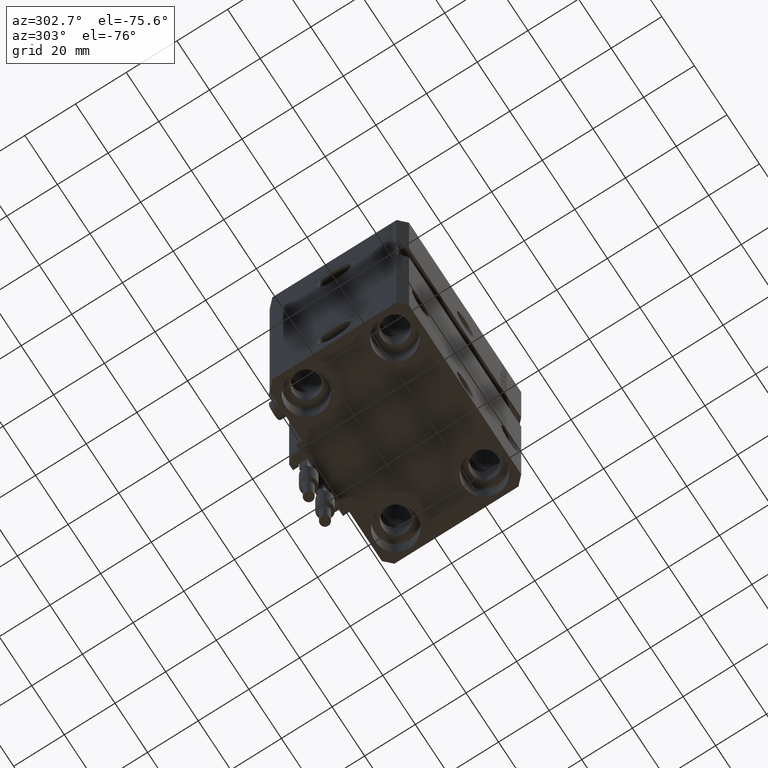
[diagram: clean part render]
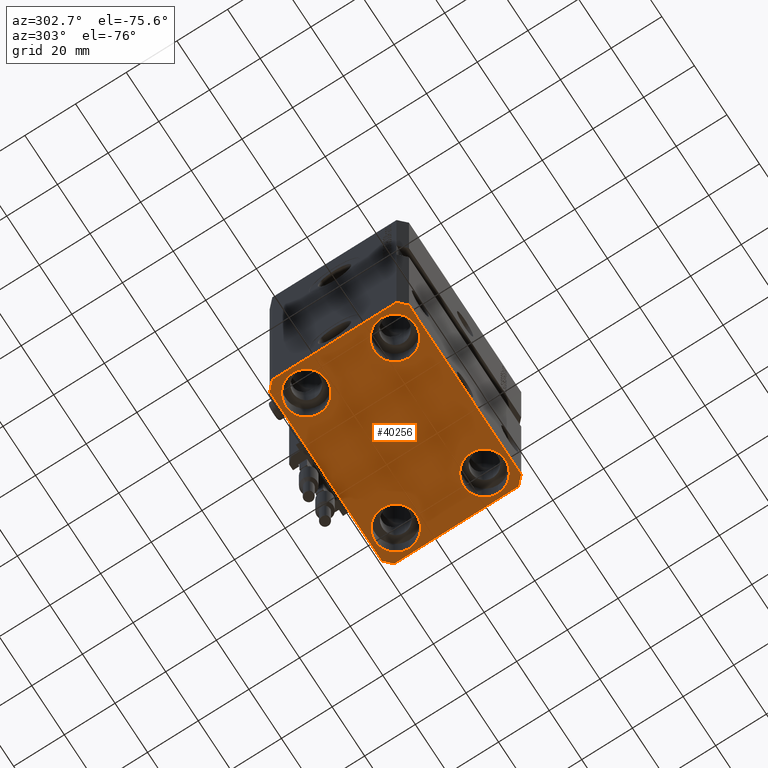
[diagram: same view with one face highlighted and labeled with its STEP entity id]
A machine part, auxiliary view. The second image highlights one B-rep face of the part: STEP entity #40256.
In plain terms, the highlighted planar face has unit normal (0, 0, 1).
Its self-contained STEP definition (entity closure, byte-faithful):
#202 = VERTEX_POINT ( 'NONE', #41326 ) ;
#227 = FACE_OUTER_BOUND ( 'NONE', #41562, .T. ) ;
#340 = VECTOR ( 'NONE', #24051, 1000.000000000000000 ) ;
#804 = DIRECTION ( 'NONE',  ( -0.7071067811865471286, -0.7071067811865479058, 0.000000000000000000 ) ) ;
#830 = ORIENTED_EDGE ( 'NONE', *, *, #5926, .T. ) ;
#1470 = VECTOR ( 'NONE', #49579, 1000.000000000000114 ) ;
#2094 = VECTOR ( 'NONE', #15143, 1000.000000000000114 ) ;
#2166 = LINE ( 'NONE', #37061, #1470 ) ;
#2675 = EDGE_CURVE ( 'NONE', #202, #41661, #6025, .T. ) ;
#2927 = DIRECTION ( 'NONE',  ( -0.000000000000000000, -0.000000000000000000, 1.000000000000000000 ) ) ;
#3236 = DIRECTION ( 'NONE',  ( 1.000000000000000000, 0.000000000000000000, 0.000000000000000000 ) ) ;
#3640 = DIRECTION ( 'NONE',  ( -0.000000000000000000, -0.000000000000000000, 1.000000000000000000 ) ) ;
#4038 = AXIS2_PLACEMENT_3D ( 'NONE', #50764, #46856, #15087 ) ;
#4148 = PLANE ( 'NONE',  #31691 ) ;
#4498 = VERTEX_POINT ( 'NONE', #33181 ) ;
#4646 = ORIENTED_EDGE ( 'NONE', *, *, #35674, .T. ) ;
#4846 = ORIENTED_EDGE ( 'NONE', *, *, #7236, .T. ) ;
#5220 = ORIENTED_EDGE ( 'NONE', *, *, #20494, .T. ) ;
#5291 = DIRECTION ( 'NONE',  ( -0.000000000000000000, -0.000000000000000000, 1.000000000000000000 ) ) ;
#5893 = CARTESIAN_POINT ( 'NONE',  ( 27.50000000000000355, -17.50000000000000000, -110.0000000000000000 ) ) ;
#5926 = EDGE_CURVE ( 'NONE', #30546, #6174, #49149, .T. ) ;
#5977 = AXIS2_PLACEMENT_3D ( 'NONE', #10790, #26402, #3236 ) ;
#6025 = LINE ( 'NONE', #33104, #22386 ) ;
#6174 = VERTEX_POINT ( 'NONE', #8880 ) ;
#7236 = EDGE_CURVE ( 'NONE', #27333, #13291, #28431, .T. ) ;
#7311 = ORIENTED_EDGE ( 'NONE', *, *, #17286, .T. ) ;
#7506 = ORIENTED_EDGE ( 'NONE', *, *, #18145, .F. ) ;
#7803 = DIRECTION ( 'NONE',  ( 1.000000000000000000, 0.000000000000000000, 0.000000000000000000 ) ) ;
#8038 = DIRECTION ( 'NONE',  ( 1.000000000000000000, 0.000000000000000000, 0.000000000000000000 ) ) ;
#8188 = CARTESIAN_POINT ( 'NONE',  ( -35.75000000000000711, -17.50000000000000000, -110.0000000000000000 ) ) ;
#8685 = LINE ( 'NONE', #21412, #34942 ) ;
#8880 = CARTESIAN_POINT ( 'NONE',  ( -35.75000000000000711, 17.50000000000000000, -110.0000000000000000 ) ) ;
#9677 = DIRECTION ( 'NONE',  ( 0.000000000000000000, -1.000000000000000000, 0.000000000000000000 ) ) ;
#10335 = ORIENTED_EDGE ( 'NONE', *, *, #31018, .F. ) ;
#10435 = AXIS2_PLACEMENT_3D ( 'NONE', #5893, #42058, #21768 ) ;
#10790 = CARTESIAN_POINT ( 'NONE',  ( 27.49999999999999645, 17.50000000000001066, -110.0000000000000000 ) ) ;
#10941 = ORIENTED_EDGE ( 'NONE', *, *, #11917, .T. ) ;
#11085 = VERTEX_POINT ( 'NONE', #17912 ) ;
#11180 = CARTESIAN_POINT ( 'NONE',  ( 0.000000000000000000, 0.000000000000000000, -110.0000000000000000 ) ) ;
#11437 = DIRECTION ( 'NONE',  ( 0.000000000000000000, 0.000000000000000000, 1.000000000000000000 ) ) ;
#11503 = DIRECTION ( 'NONE',  ( 1.000000000000000000, 0.000000000000000000, 0.000000000000000000 ) ) ;
#11917 = EDGE_CURVE ( 'NONE', #30815, #34428, #20165, .T. ) ;
#11942 = LINE ( 'NONE', #43709, #27100 ) ;
#12455 = EDGE_LOOP ( 'NONE', ( #7311, #13935 ) ) ;
#13291 = VERTEX_POINT ( 'NONE', #21071 ) ;
#13366 = DIRECTION ( 'NONE',  ( 1.000000000000000000, 0.000000000000000000, 0.000000000000000000 ) ) ;
#13625 = CARTESIAN_POINT ( 'NONE',  ( -27.50000000000000355, 17.50000000000000000, -110.0000000000000000 ) ) ;
#13935 = ORIENTED_EDGE ( 'NONE', *, *, #25793, .T. ) ;
#14106 = LINE ( 'NONE', #50298, #2094 ) ;
#15087 = DIRECTION ( 'NONE',  ( 1.000000000000000000, 0.000000000000000000, 0.000000000000000000 ) ) ;
#15123 = CARTESIAN_POINT ( 'NONE',  ( 35.74999999999999289, 17.50000000000001066, -110.0000000000000000 ) ) ;
#15143 = DIRECTION ( 'NONE',  ( -0.7071067811865356934, 0.7071067811865594521, 0.000000000000000000 ) ) ;
#15417 = EDGE_LOOP ( 'NONE', ( #47909, #830 ) ) ;
#15577 = CARTESIAN_POINT ( 'NONE',  ( 37.49999999999999289, -24.50000000000000000, -110.0000000000000000 ) ) ;
#16532 = CIRCLE ( 'NONE', #4038, 8.249999999999992895 ) ;
#17286 = EDGE_CURVE ( 'NONE', #35096, #23599, #24526, .T. ) ;
#17912 = CARTESIAN_POINT ( 'NONE',  ( 34.50000000000056843, 27.50000000000000000, -110.0000000000000000 ) ) ;
#17939 = ORIENTED_EDGE ( 'NONE', *, *, #39572, .F. ) ;
#18145 = EDGE_CURVE ( 'NONE', #35467, #11085, #14106, .T. ) ;
#18266 = CARTESIAN_POINT ( 'NONE',  ( 37.50000000000051870, 24.49999999999995381, -110.0000000000000000 ) ) ;
#18546 = CARTESIAN_POINT ( 'NONE',  ( -27.50000000000000355, -17.50000000000000000, -110.0000000000000000 ) ) ;
#18618 = EDGE_CURVE ( 'NONE', #4498, #19673, #11942, .T. ) ;
#18946 = DIRECTION ( 'NONE',  ( 1.076236605503979380E-14, 1.000000000000000000, 0.000000000000000000 ) ) ;
#19673 = VERTEX_POINT ( 'NONE', #21818 ) ;
#20165 = CIRCLE ( 'NONE', #29310, 8.250000000000000000 ) ;
#20494 = EDGE_CURVE ( 'NONE', #34428, #30815, #47994, .T. ) ;
#20838 = CARTESIAN_POINT ( 'NONE',  ( -37.49999999999999289, -24.50000000000000000, -110.0000000000000000 ) ) ;
#21071 = CARTESIAN_POINT ( 'NONE',  ( 19.25000000000000000, 17.50000000000001066, -110.0000000000000000 ) ) ;
#21412 = CARTESIAN_POINT ( 'NONE',  ( -37.49999999999999289, -24.50000000000000000, -110.0000000000000000 ) ) ;
#21768 = DIRECTION ( 'NONE',  ( 1.000000000000000000, 0.000000000000000000, 0.000000000000000000 ) ) ;
#21818 = CARTESIAN_POINT ( 'NONE',  ( 34.49999999999999289, -27.49999999999999645, -110.0000000000000000 ) ) ;
#22386 = VECTOR ( 'NONE', #9677, 1000.000000000000000 ) ;
#22858 = AXIS2_PLACEMENT_3D ( 'NONE', #26680, #43348, #31362 ) ;
#22993 = VECTOR ( 'NONE', #18946, 1000.000000000000000 ) ;
#23551 = EDGE_CURVE ( 'NONE', #11085, #27082, #23796, .T. ) ;
#23599 = VERTEX_POINT ( 'NONE', #34603 ) ;
#23796 = LINE ( 'NONE', #27957, #340 ) ;
#24051 = DIRECTION ( 'NONE',  ( -1.000000000000000000, 0.000000000000000000, 0.000000000000000000 ) ) ;
#24154 = ORIENTED_EDGE ( 'NONE', *, *, #18618, .F. ) ;
#24526 = CIRCLE ( 'NONE', #22858, 8.250000000000000000 ) ;
#25745 = CIRCLE ( 'NONE', #29904, 8.250000000000000000 ) ;
#25793 = EDGE_CURVE ( 'NONE', #23599, #35096, #43711, .T. ) ;
#26273 = CARTESIAN_POINT ( 'NONE',  ( 37.49999999999999289, -24.50000000000000000, -110.0000000000000000 ) ) ;
#26402 = DIRECTION ( 'NONE',  ( -0.000000000000000000, -0.000000000000000000, 1.000000000000000000 ) ) ;
#26680 = CARTESIAN_POINT ( 'NONE',  ( 27.50000000000000355, -17.50000000000000000, -110.0000000000000000 ) ) ;
#27082 = VERTEX_POINT ( 'NONE', #39117 ) ;
#27100 = VECTOR ( 'NONE', #8038, 1000.000000000000000 ) ;
#27333 = VERTEX_POINT ( 'NONE', #15123 ) ;
#27532 = AXIS2_PLACEMENT_3D ( 'NONE', #13625, #5291, #13366 ) ;
#27581 = FACE_BOUND ( 'NONE', #35935, .T. ) ;
#27957 = CARTESIAN_POINT ( 'NONE',  ( 34.50000000000056843, 27.50000000000000000, -110.0000000000000000 ) ) ;
#28051 = EDGE_LOOP ( 'NONE', ( #10941, #5220 ) ) ;
#28431 = CIRCLE ( 'NONE', #5977, 8.249999999999992895 ) ;
#28622 = CARTESIAN_POINT ( 'NONE',  ( -27.50000000000000355, -17.50000000000000000, -110.0000000000000000 ) ) ;
#28631 = EDGE_CURVE ( 'NONE', #41682, #35467, #42139, .T. ) ;
#29310 = AXIS2_PLACEMENT_3D ( 'NONE', #18546, #2927, #11503 ) ;
#29904 = AXIS2_PLACEMENT_3D ( 'NONE', #37765, #49763, #41676 ) ;
#30546 = VERTEX_POINT ( 'NONE', #50985 ) ;
#30815 = VERTEX_POINT ( 'NONE', #8188 ) ;
#30831 = VECTOR ( 'NONE', #804, 1000.000000000000000 ) ;
#31018 = EDGE_CURVE ( 'NONE', #19673, #41682, #2166, .T. ) ;
#31362 = DIRECTION ( 'NONE',  ( 1.000000000000000000, 0.000000000000000000, 0.000000000000000000 ) ) ;
#31691 = AXIS2_PLACEMENT_3D ( 'NONE', #11180, #11437, #47652 ) ;
#33104 = CARTESIAN_POINT ( 'NONE',  ( -37.49999999999999289, 24.50000000000000000, -110.0000000000000000 ) ) ;
#33181 = CARTESIAN_POINT ( 'NONE',  ( -34.49999999999998579, -27.49999999999999645, -110.0000000000000000 ) ) ;
#34428 = VERTEX_POINT ( 'NONE', #46544 ) ;
#34603 = CARTESIAN_POINT ( 'NONE',  ( 35.75000000000000711, -17.50000000000000000, -110.0000000000000000 ) ) ;
#34860 = FACE_BOUND ( 'NONE', #12455, .T. ) ;
#34942 = VECTOR ( 'NONE', #37293, 1000.000000000000000 ) ;
#35096 = VERTEX_POINT ( 'NONE', #50074 ) ;
#35467 = VERTEX_POINT ( 'NONE', #18266 ) ;
#35674 = EDGE_CURVE ( 'NONE', #13291, #27333, #16532, .T. ) ;
#35935 = EDGE_LOOP ( 'NONE', ( #4646, #4846 ) ) ;
#36466 = ORIENTED_EDGE ( 'NONE', *, *, #39975, .F. ) ;
#36983 = CARTESIAN_POINT ( 'NONE',  ( -34.49999999999999289, 27.50000000000000000, -110.0000000000000000 ) ) ;
#37061 = CARTESIAN_POINT ( 'NONE',  ( 34.49999999999999289, -27.49999999999999645, -110.0000000000000000 ) ) ;
#37293 = DIRECTION ( 'NONE',  ( 0.7071067811865483499, -0.7071067811865466846, 0.000000000000000000 ) ) ;
#37504 = EDGE_CURVE ( 'NONE', #6174, #30546, #25745, .T. ) ;
#37765 = CARTESIAN_POINT ( 'NONE',  ( -27.50000000000000355, 17.50000000000000000, -110.0000000000000000 ) ) ;
#37955 = AXIS2_PLACEMENT_3D ( 'NONE', #28622, #3640, #7803 ) ;
#39117 = CARTESIAN_POINT ( 'NONE',  ( -34.49999999999999289, 27.50000000000000000, -110.0000000000000000 ) ) ;
#39572 = EDGE_CURVE ( 'NONE', #41661, #4498, #8685, .T. ) ;
#39975 = EDGE_CURVE ( 'NONE', #27082, #202, #40642, .T. ) ;
#40256 = ADVANCED_FACE ( 'NONE', ( #51552, #34860, #27581, #43726, #227 ), #4148, .F. ) ;
#40642 = LINE ( 'NONE', #36983, #30831 ) ;
#40817 = ORIENTED_EDGE ( 'NONE', *, *, #2675, .F. ) ;
#41326 = CARTESIAN_POINT ( 'NONE',  ( -37.49999999999999289, 24.50000000000000000, -110.0000000000000000 ) ) ;
#41562 = EDGE_LOOP ( 'NONE', ( #50295, #7506, #46280, #10335, #24154, #17939, #40817, #36466 ) ) ;
#41661 = VERTEX_POINT ( 'NONE', #20838 ) ;
#41676 = DIRECTION ( 'NONE',  ( 1.000000000000000000, 0.000000000000000000, 0.000000000000000000 ) ) ;
#41682 = VERTEX_POINT ( 'NONE', #26273 ) ;
#42058 = DIRECTION ( 'NONE',  ( -0.000000000000000000, -0.000000000000000000, 1.000000000000000000 ) ) ;
#42139 = LINE ( 'NONE', #15577, #22993 ) ;
#43348 = DIRECTION ( 'NONE',  ( -0.000000000000000000, -0.000000000000000000, 1.000000000000000000 ) ) ;
#43709 = CARTESIAN_POINT ( 'NONE',  ( -34.49999999999998579, -27.49999999999999645, -110.0000000000000000 ) ) ;
#43711 = CIRCLE ( 'NONE', #10435, 8.250000000000000000 ) ;
#43726 = FACE_BOUND ( 'NONE', #15417, .T. ) ;
#46280 = ORIENTED_EDGE ( 'NONE', *, *, #28631, .F. ) ;
#46544 = CARTESIAN_POINT ( 'NONE',  ( -19.25000000000000355, -17.50000000000000000, -110.0000000000000000 ) ) ;
#46856 = DIRECTION ( 'NONE',  ( -0.000000000000000000, -0.000000000000000000, 1.000000000000000000 ) ) ;
#47652 = DIRECTION ( 'NONE',  ( 1.000000000000000000, 0.000000000000000000, -0.000000000000000000 ) ) ;
#47909 = ORIENTED_EDGE ( 'NONE', *, *, #37504, .T. ) ;
#47994 = CIRCLE ( 'NONE', #37955, 8.250000000000000000 ) ;
#49149 = CIRCLE ( 'NONE', #27532, 8.250000000000000000 ) ;
#49579 = DIRECTION ( 'NONE',  ( 0.7071067811865474617, 0.7071067811865474617, 0.000000000000000000 ) ) ;
#49763 = DIRECTION ( 'NONE',  ( -0.000000000000000000, -0.000000000000000000, 1.000000000000000000 ) ) ;
#50074 = CARTESIAN_POINT ( 'NONE',  ( 19.25000000000000000, -17.50000000000000000, -110.0000000000000000 ) ) ;
#50295 = ORIENTED_EDGE ( 'NONE', *, *, #23551, .F. ) ;
#50298 = CARTESIAN_POINT ( 'NONE',  ( 37.50000000000051870, 24.49999999999995381, -110.0000000000000000 ) ) ;
#50764 = CARTESIAN_POINT ( 'NONE',  ( 27.49999999999999645, 17.50000000000001066, -110.0000000000000000 ) ) ;
#50985 = CARTESIAN_POINT ( 'NONE',  ( -19.25000000000000355, 17.50000000000000000, -110.0000000000000000 ) ) ;
#51552 = FACE_BOUND ( 'NONE', #28051, .T. ) ;